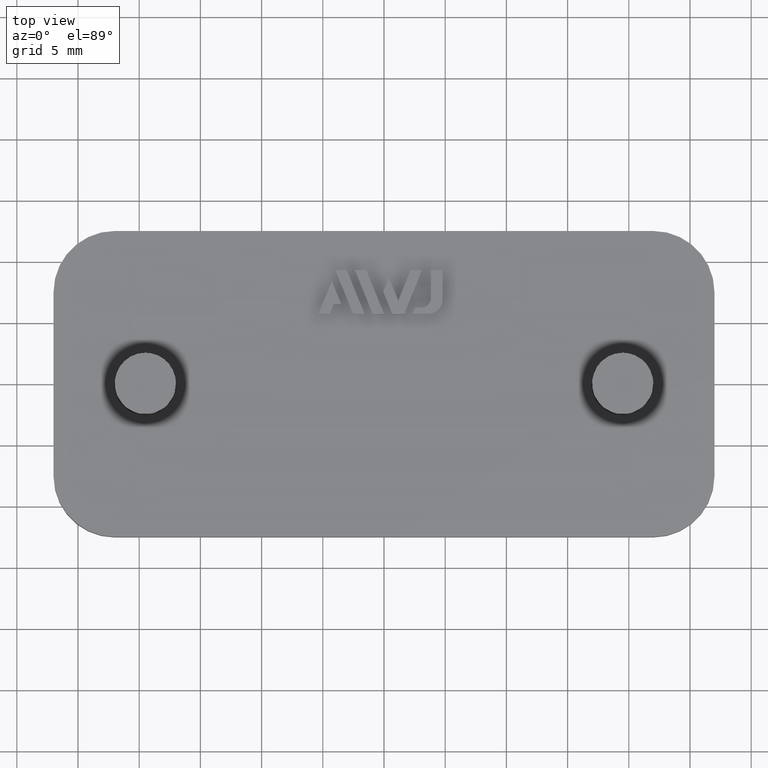
[diagram: clean part render]
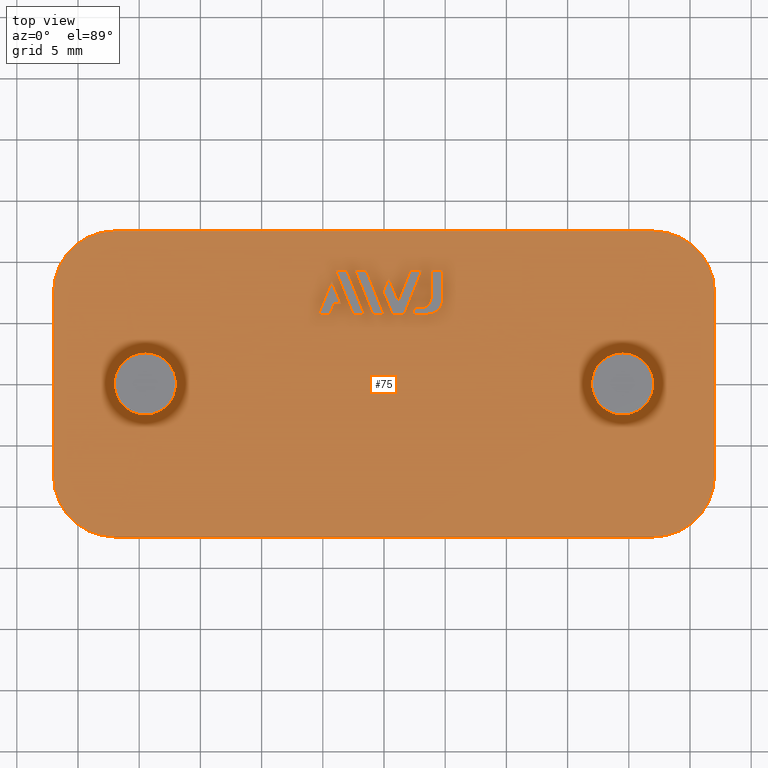
[diagram: same view with one face highlighted and labeled with its STEP entity id]
A machine part, top view. The second image highlights one B-rep face of the part: STEP entity #75.
In plain terms, the highlighted planar face has unit normal (0, -0, -1).
Its self-contained STEP definition (entity closure, byte-faithful):
#75 = ADVANCED_FACE( '', ( #137, #138, #139, #140, #141, #142, #143, #144 ), #145, .F. );
#137 = FACE_BOUND( '', #270, .T. );
#138 = FACE_BOUND( '', #271, .T. );
#139 = FACE_OUTER_BOUND( '', #272, .T. );
#140 = FACE_BOUND( '', #273, .T. );
#141 = FACE_BOUND( '', #274, .T. );
#142 = FACE_BOUND( '', #275, .T. );
#143 = FACE_BOUND( '', #276, .T. );
#144 = FACE_BOUND( '', #277, .T. );
#145 = PLANE( '', #278 );
#270 = EDGE_LOOP( '', ( #403, #404, #405, #406, #407, #408, #409 ) );
#271 = EDGE_LOOP( '', ( #410, #411, #412, #413 ) );
#272 = EDGE_LOOP( '', ( #414, #415, #416, #417, #418, #419, #420, #421 ) );
#273 = EDGE_LOOP( '', ( #422 ) );
#274 = EDGE_LOOP( '', ( #423 ) );
#275 = EDGE_LOOP( '', ( #424, #425, #426, #427, #428 ) );
#276 = EDGE_LOOP( '', ( #429, #430, #431, #432 ) );
#277 = EDGE_LOOP( '', ( #433, #434, #435, #436, #437, #438, #439, #440 ) );
#278 = AXIS2_PLACEMENT_3D( '', #441, #442, #443 );
#403 = ORIENTED_EDGE( '', *, *, #882, .F. );
#404 = ORIENTED_EDGE( '', *, *, #883, .F. );
#405 = ORIENTED_EDGE( '', *, *, #884, .F. );
#406 = ORIENTED_EDGE( '', *, *, #885, .F. );
#407 = ORIENTED_EDGE( '', *, *, #886, .F. );
#408 = ORIENTED_EDGE( '', *, *, #887, .F. );
#409 = ORIENTED_EDGE( '', *, *, #888, .F. );
#410 = ORIENTED_EDGE( '', *, *, #889, .F. );
#411 = ORIENTED_EDGE( '', *, *, #890, .F. );
#412 = ORIENTED_EDGE( '', *, *, #891, .F. );
#413 = ORIENTED_EDGE( '', *, *, #892, .F. );
#414 = ORIENTED_EDGE( '', *, *, #893, .F. );
#415 = ORIENTED_EDGE( '', *, *, #894, .F. );
#416 = ORIENTED_EDGE( '', *, *, #895, .F. );
#417 = ORIENTED_EDGE( '', *, *, #896, .F. );
#418 = ORIENTED_EDGE( '', *, *, #897, .F. );
#419 = ORIENTED_EDGE( '', *, *, #898, .F. );
#420 = ORIENTED_EDGE( '', *, *, #899, .F. );
#421 = ORIENTED_EDGE( '', *, *, #900, .F. );
#422 = ORIENTED_EDGE( '', *, *, #901, .T. );
#423 = ORIENTED_EDGE( '', *, *, #902, .T. );
#424 = ORIENTED_EDGE( '', *, *, #903, .F. );
#425 = ORIENTED_EDGE( '', *, *, #904, .F. );
#426 = ORIENTED_EDGE( '', *, *, #905, .F. );
#427 = ORIENTED_EDGE( '', *, *, #906, .F. );
#428 = ORIENTED_EDGE( '', *, *, #907, .F. );
#429 = ORIENTED_EDGE( '', *, *, #908, .F. );
#430 = ORIENTED_EDGE( '', *, *, #909, .F. );
#431 = ORIENTED_EDGE( '', *, *, #910, .F. );
#432 = ORIENTED_EDGE( '', *, *, #911, .F. );
#433 = ORIENTED_EDGE( '', *, *, #912, .F. );
#434 = ORIENTED_EDGE( '', *, *, #913, .F. );
#435 = ORIENTED_EDGE( '', *, *, #914, .F. );
#436 = ORIENTED_EDGE( '', *, *, #915, .F. );
#437 = ORIENTED_EDGE( '', *, *, #916, .F. );
#438 = ORIENTED_EDGE( '', *, *, #917, .F. );
#439 = ORIENTED_EDGE( '', *, *, #918, .F. );
#440 = ORIENTED_EDGE( '', *, *, #919, .F. );
#441 = CARTESIAN_POINT( '', ( 39.5000000000000, 3.65313790502697E-015, 2.99999999999999 ) );
#442 = DIRECTION( '', ( 0.000000000000000, -6.12303176911189E-017, -1.00000000000000 ) );
#443 = DIRECTION( '', ( 0.000000000000000, 1.00000000000000, -6.12303176911189E-017 ) );
#882 = EDGE_CURVE( '', #1030, #1031, #1032, .T. );
#883 = EDGE_CURVE( '', #1033, #1030, #1034, .T. );
#884 = EDGE_CURVE( '', #1035, #1033, #1036, .T. );
#885 = EDGE_CURVE( '', #1037, #1035, #1038, .T. );
#886 = EDGE_CURVE( '', #1039, #1037, #1040, .T. );
#887 = EDGE_CURVE( '', #1041, #1039, #1042, .T. );
#888 = EDGE_CURVE( '', #1031, #1041, #1043, .T. );
#889 = EDGE_CURVE( '', #1044, #1045, #1046, .T. );
#890 = EDGE_CURVE( '', #1047, #1044, #1048, .T. );
#891 = EDGE_CURVE( '', #1049, #1047, #1050, .T. );
#892 = EDGE_CURVE( '', #1045, #1049, #1051, .T. );
#893 = EDGE_CURVE( '', #1052, #1053, #1054, .T. );
#894 = EDGE_CURVE( '', #1055, #1052, #1056, .T. );
#895 = EDGE_CURVE( '', #1057, #1055, #1058, .T. );
#896 = EDGE_CURVE( '', #1059, #1057, #1060, .T. );
#897 = EDGE_CURVE( '', #1061, #1059, #1062, .T. );
#898 = EDGE_CURVE( '', #1063, #1061, #1064, .T. );
#899 = EDGE_CURVE( '', #1065, #1063, #1066, .T. );
#900 = EDGE_CURVE( '', #1053, #1065, #1067, .T. );
#901 = EDGE_CURVE( '', #1068, #1068, #1069, .T. );
#902 = EDGE_CURVE( '', #1070, #1070, #1071, .T. );
#903 = EDGE_CURVE( '', #1072, #1073, #1074, .T. );
#904 = EDGE_CURVE( '', #1075, #1072, #1076, .T. );
#905 = EDGE_CURVE( '', #1077, #1075, #1078, .T. );
#906 = EDGE_CURVE( '', #1079, #1077, #1080, .T. );
#907 = EDGE_CURVE( '', #1073, #1079, #1081, .T. );
#908 = EDGE_CURVE( '', #1082, #1083, #1084, .T. );
#909 = EDGE_CURVE( '', #1085, #1082, #1086, .T. );
#910 = EDGE_CURVE( '', #1087, #1085, #1088, .T. );
#911 = EDGE_CURVE( '', #1083, #1087, #1089, .T. );
#912 = EDGE_CURVE( '', #1090, #1091, #1092, .T. );
#913 = EDGE_CURVE( '', #1093, #1090, #1094, .T. );
#914 = EDGE_CURVE( '', #1095, #1093, #1096, .T. );
#915 = EDGE_CURVE( '', #1097, #1095, #1098, .T. );
#916 = EDGE_CURVE( '', #1099, #1097, #1100, .T. );
#917 = EDGE_CURVE( '', #1101, #1099, #1102, .T. );
#918 = EDGE_CURVE( '', #1103, #1101, #1104, .T. );
#919 = EDGE_CURVE( '', #1091, #1103, #1105, .T. );
#1030 = VERTEX_POINT( '', #1278 );
#1031 = VERTEX_POINT( '', #1279 );
#1032 = LINE( '', #1280, #1281 );
#1033 = VERTEX_POINT( '', #1282 );
#1034 = LINE( '', #1283, #1284 );
#1035 = VERTEX_POINT( '', #1285 );
#1036 = LINE( '', #1286, #1287 );
#1037 = VERTEX_POINT( '', #1288 );
#1038 = LINE( '', #1289, #1290 );
#1039 = VERTEX_POINT( '', #1291 );
#1040 = LINE( '', #1292, #1293 );
#1041 = VERTEX_POINT( '', #1294 );
#1042 = LINE( '', #1295, #1296 );
#1043 = LINE( '', #1297, #1298 );
#1044 = VERTEX_POINT( '', #1299 );
#1045 = VERTEX_POINT( '', #1300 );
#1046 = LINE( '', #1301, #1302 );
#1047 = VERTEX_POINT( '', #1303 );
#1048 = LINE( '', #1304, #1305 );
#1049 = VERTEX_POINT( '', #1306 );
#1050 = LINE( '', #1307, #1308 );
#1051 = LINE( '', #1309, #1310 );
#1052 = VERTEX_POINT( '', #1311 );
#1053 = VERTEX_POINT( '', #1312 );
#1054 = CIRCLE( '', #1313, 5.00000000000000 );
#1055 = VERTEX_POINT( '', #1314 );
#1056 = LINE( '', #1315, #1316 );
#1057 = VERTEX_POINT( '', #1317 );
#1058 = CIRCLE( '', #1318, 4.99999999999995 );
#1059 = VERTEX_POINT( '', #1319 );
#1060 = LINE( '', #1320, #1321 );
#1061 = VERTEX_POINT( '', #1322 );
#1062 = CIRCLE( '', #1323, 4.99999999999998 );
#1063 = VERTEX_POINT( '', #1324 );
#1064 = LINE( '', #1325, #1326 );
#1065 = VERTEX_POINT( '', #1327 );
#1066 = CIRCLE( '', #1328, 5.00000000000000 );
#1067 = LINE( '', #1329, #1330 );
#1068 = VERTEX_POINT( '', #1331 );
#1069 = CIRCLE( '', #1332, 2.54363766232054 );
#1070 = VERTEX_POINT( '', #1333 );
#1071 = CIRCLE( '', #1334, 2.54363766232055 );
#1072 = VERTEX_POINT( '', #1335 );
#1073 = VERTEX_POINT( '', #1336 );
#1074 = LINE( '', #1337, #1338 );
#1075 = VERTEX_POINT( '', #1339 );
#1076 = LINE( '', #1340, #1341 );
#1077 = VERTEX_POINT( '', #1342 );
#1078 = LINE( '', #1343, #1344 );
#1079 = VERTEX_POINT( '', #1345 );
#1080 = LINE( '', #1346, #1347 );
#1081 = LINE( '', #1348, #1349 );
#1082 = VERTEX_POINT( '', #1350 );
#1083 = VERTEX_POINT( '', #1351 );
#1084 = LINE( '', #1352, #1353 );
#1085 = VERTEX_POINT( '', #1354 );
#1086 = LINE( '', #1355, #1356 );
#1087 = VERTEX_POINT( '', #1357 );
#1088 = LINE( '', #1358, #1359 );
#1089 = LINE( '', #1360, #1361 );
#1090 = VERTEX_POINT( '', #1362 );
#1091 = VERTEX_POINT( '', #1363 );
#1092 = CIRCLE( '', #1364, 1.20000000000000 );
#1093 = VERTEX_POINT( '', #1365 );
#1094 = LINE( '', #1366, #1367 );
#1095 = VERTEX_POINT( '', #1368 );
#1096 = LINE( '', #1369, #1370 );
#1097 = VERTEX_POINT( '', #1371 );
#1098 = LINE( '', #1372, #1373 );
#1099 = VERTEX_POINT( '', #1374 );
#1100 = CIRCLE( '', #1375, 0.799999999999998 );
#1101 = VERTEX_POINT( '', #1376 );
#1102 = LINE( '', #1377, #1378 );
#1103 = VERTEX_POINT( '', #1379 );
#1104 = LINE( '', #1380, #1381 );
#1105 = LINE( '', #1382, #1383 );
#1278 = CARTESIAN_POINT( '', ( 1.65153815900082, 5.70000000000000, 2.99999999999999 ) );
#1279 = CARTESIAN_POINT( '', ( 3.10489558569055, 9.29736617046470, 2.99999999999997 ) );
#1280 = CARTESIAN_POINT( '', ( 1.65153815900082, 5.70000000000000, 2.99999999999999 ) );
#1281 = VECTOR( '', #1658, 1000.00000000000 );
#1282 = CARTESIAN_POINT( '', ( 0.668868987414780, 5.70000000000000, 2.99999999999997 ) );
#1283 = CARTESIAN_POINT( '', ( 0.668868987414779, 5.70000000000000, 2.99999999999999 ) );
#1284 = VECTOR( '', #1659, 1000.00000000000 );
#1285 = CARTESIAN_POINT( '', ( -0.0717422425349961, 7.53275704409051, 3.00000000000000 ) );
#1286 = CARTESIAN_POINT( '', ( -0.0717422425349969, 7.53275704409051, 2.99999999999999 ) );
#1287 = VECTOR( '', #1660, 1000.00000000000 );
#1288 = CARTESIAN_POINT( '', ( 0.393055647481204, 8.68337374758956, 3.00000000000000 ) );
#1289 = CARTESIAN_POINT( '', ( 0.393055647481204, 8.68337374758955, 3.00000000000000 ) );
#1290 = VECTOR( '', #1661, 1000.00000000000 );
#1291 = CARTESIAN_POINT( '', ( 1.16010139340526, 6.78495716450334, 2.99999999999997 ) );
#1292 = CARTESIAN_POINT( '', ( 1.16010139340526, 6.78495716450335, 2.99999999999999 ) );
#1293 = VECTOR( '', #1662, 1000.00000000000 );
#1294 = CARTESIAN_POINT( '', ( 2.17529980565815, 9.29736617046470, 2.99999999999997 ) );
#1295 = CARTESIAN_POINT( '', ( 2.17529980565815, 9.29736617046470, 2.99999999999997 ) );
#1296 = VECTOR( '', #1663, 1000.00000000000 );
#1297 = CARTESIAN_POINT( '', ( 3.10489558569055, 9.29736617046470, 2.99999999999997 ) );
#1298 = VECTOR( '', #1664, 1000.00000000000 );
#1299 = CARTESIAN_POINT( '', ( -1.59847678860036, 5.70000000000000, 3.00000000000000 ) );
#1300 = CARTESIAN_POINT( '', ( -3.05206261720165, 9.29736617046469, 3.00000000000002 ) );
#1301 = CARTESIAN_POINT( '', ( -1.59847678860036, 5.70000000000000, 2.99999999999999 ) );
#1302 = VECTOR( '', #1665, 1000.00000000000 );
#1303 = CARTESIAN_POINT( '', ( -2.52799443113670, 5.69999999999999, 3.00000000000000 ) );
#1304 = CARTESIAN_POINT( '', ( -2.52799443113670, 5.70000000000000, 3.00000000000000 ) );
#1305 = VECTOR( '', #1666, 1000.00000000000 );
#1306 = CARTESIAN_POINT( '', ( -3.98137590013291, 9.29736617046469, 3.00000000000002 ) );
#1307 = CARTESIAN_POINT( '', ( -3.98137590013291, 9.29736617046469, 3.00000000000002 ) );
#1308 = VECTOR( '', #1667, 1000.00000000000 );
#1309 = CARTESIAN_POINT( '', ( -3.05206261720165, 9.29736617046469, 3.00000000000002 ) );
#1310 = VECTOR( '', #1668, 1000.00000000000 );
#1311 = CARTESIAN_POINT( '', ( 22.0000000000000, 12.5000000000000, 2.99999999999999 ) );
#1312 = CARTESIAN_POINT( '', ( 27.0000000000000, 7.50000000000001, 2.99999999999999 ) );
#1313 = AXIS2_PLACEMENT_3D( '', #1669, #1670, #1671 );
#1314 = CARTESIAN_POINT( '', ( -22.0000000000000, 12.4999999999999, 2.99999999999999 ) );
#1315 = CARTESIAN_POINT( '', ( -39.4999999999999, 12.5000000000000, 2.99999999999999 ) );
#1316 = VECTOR( '', #1672, 1000.00000000000 );
#1317 = CARTESIAN_POINT( '', ( -27.0000000000000, 7.50000000000002, 2.99999999999999 ) );
#1318 = AXIS2_PLACEMENT_3D( '', #1673, #1674, #1675 );
#1319 = CARTESIAN_POINT( '', ( -27.0000000000000, -7.50000000000002, 2.99999999999999 ) );
#1320 = CARTESIAN_POINT( '', ( -27.0000000000000, 3.65313790502697E-015, 2.99999999999999 ) );
#1321 = VECTOR( '', #1676, 1000.00000000000 );
#1322 = CARTESIAN_POINT( '', ( -22.0000000000000, -12.5000000000000, 2.99999999999999 ) );
#1323 = AXIS2_PLACEMENT_3D( '', #1677, #1678, #1679 );
#1324 = CARTESIAN_POINT( '', ( 22.0000000000000, -12.5000000000000, 2.99999999999999 ) );
#1325 = CARTESIAN_POINT( '', ( 39.5000000000000, -12.5000000000000, 2.99999999999999 ) );
#1326 = VECTOR( '', #1680, 1000.00000000000 );
#1327 = CARTESIAN_POINT( '', ( 27.0000000000000, -7.49999999999999, 2.99999999999999 ) );
#1328 = AXIS2_PLACEMENT_3D( '', #1681, #1682, #1683 );
#1329 = CARTESIAN_POINT( '', ( 27.0000000000000, 3.65313790502697E-015, 2.99999999999999 ) );
#1330 = VECTOR( '', #1684, 1000.00000000000 );
#1331 = CARTESIAN_POINT( '', ( -19.5000000000000, 2.54363766232054, 2.99999999999999 ) );
#1332 = AXIS2_PLACEMENT_3D( '', #1685, #1686, #1687 );
#1333 = CARTESIAN_POINT( '', ( 19.5000000000000, 2.54363766232055, 2.99999999999999 ) );
#1334 = AXIS2_PLACEMENT_3D( '', #1688, #1689, #1690 );
#1335 = CARTESIAN_POINT( '', ( -4.42597825270628, 5.69999999999999, 3.00000000000000 ) );
#1336 = CARTESIAN_POINT( '', ( -4.09004712542055, 6.53085402732082, 3.00000000000000 ) );
#1337 = CARTESIAN_POINT( '', ( -4.42597825270628, 5.69999999999999, 3.00000000000000 ) );
#1338 = VECTOR( '', #1691, 1000.00000000000 );
#1339 = CARTESIAN_POINT( '', ( -5.35529153563754, 5.69999999999999, 3.00000000000002 ) );
#1340 = CARTESIAN_POINT( '', ( -5.35529153563754, 5.69999999999999, 3.00000000000000 ) );
#1341 = VECTOR( '', #1692, 1000.00000000000 );
#1342 = CARTESIAN_POINT( '', ( -4.26568819540701, 8.39721019471653, 3.00000000000002 ) );
#1343 = CARTESIAN_POINT( '', ( -4.26568819540701, 8.39721019471652, 3.00000000000002 ) );
#1344 = VECTOR( '', #1693, 1000.00000000000 );
#1345 = CARTESIAN_POINT( '', ( -3.51197991900250, 6.53085402732082, 3.00000000000000 ) );
#1346 = CARTESIAN_POINT( '', ( -3.51197991900250, 6.53085402732082, 3.00000000000000 ) );
#1347 = VECTOR( '', #1694, 1000.00000000000 );
#1348 = CARTESIAN_POINT( '', ( -4.09004712542055, 6.53085402732082, 3.00000000000000 ) );
#1349 = VECTOR( '', #1695, 1000.00000000000 );
#1350 = CARTESIAN_POINT( '', ( 2.42861286636753E-014, 5.70000000000000, 2.99999999999999 ) );
#1351 = CARTESIAN_POINT( '', ( -1.45358582860126, 9.29736617046470, 3.00000000000000 ) );
#1352 = CARTESIAN_POINT( '', ( 2.42861286636753E-014, 5.70000000000000, 2.99999999999999 ) );
#1353 = VECTOR( '', #1696, 1000.00000000000 );
#1354 = CARTESIAN_POINT( '', ( -0.929583758879132, 5.70000000000000, 3.00000000000000 ) );
#1355 = CARTESIAN_POINT( '', ( -0.929583758879133, 5.70000000000000, 2.99999999999999 ) );
#1356 = VECTOR( '', #1697, 1000.00000000000 );
#1357 = CARTESIAN_POINT( '', ( -2.38316958748042, 9.29736617046470, 3.00000000000000 ) );
#1358 = CARTESIAN_POINT( '', ( -2.38316958748042, 9.29736617046470, 3.00000000000002 ) );
#1359 = VECTOR( '', #1698, 1000.00000000000 );
#1360 = CARTESIAN_POINT( '', ( -1.45358582860126, 9.29736617046470, 3.00000000000000 ) );
#1361 = VECTOR( '', #1699, 1000.00000000000 );
#1362 = CARTESIAN_POINT( '', ( 3.58288028181887, 5.70000000000000, 2.99999999999997 ) );
#1363 = CARTESIAN_POINT( '', ( 4.78288028181886, 6.90000000000000, 2.99999999999996 ) );
#1364 = AXIS2_PLACEMENT_3D( '', #1700, #1701, #1702 );
#1365 = CARTESIAN_POINT( '', ( 2.32040714641557, 5.70000000000000, 2.99999999999997 ) );
#1366 = CARTESIAN_POINT( '', ( 2.32040714641557, 5.70000000000000, 2.99999999999997 ) );
#1367 = VECTOR( '', #1703, 1000.00000000000 );
#1368 = CARTESIAN_POINT( '', ( 2.53176335265063, 6.22312496744035, 2.99999999999997 ) );
#1369 = CARTESIAN_POINT( '', ( 2.53176335265063, 6.22312496744036, 2.99999999999997 ) );
#1370 = VECTOR( '', #1704, 1000.00000000000 );
#1371 = CARTESIAN_POINT( '', ( 3.04274195062400, 6.22312496744035, 2.99999999999997 ) );
#1372 = CARTESIAN_POINT( '', ( 3.04274195062399, 6.22312496744035, 2.99999999999997 ) );
#1373 = VECTOR( '', #1705, 1000.00000000000 );
#1374 = CARTESIAN_POINT( '', ( 3.84274195062400, 7.02312496744034, 2.99999999999997 ) );
#1375 = AXIS2_PLACEMENT_3D( '', #1706, #1707, #1708 );
#1376 = CARTESIAN_POINT( '', ( 3.84274195062400, 9.29736617046470, 2.99999999999997 ) );
#1377 = CARTESIAN_POINT( '', ( 3.84274195062400, 9.29736617046470, 2.99999999999997 ) );
#1378 = VECTOR( '', #1709, 1000.00000000000 );
#1379 = CARTESIAN_POINT( '', ( 4.78288028181886, 9.29736617046470, 2.99999999999996 ) );
#1380 = CARTESIAN_POINT( '', ( 4.78288028181886, 9.29736617046470, 2.99999999999997 ) );
#1381 = VECTOR( '', #1710, 1000.00000000000 );
#1382 = CARTESIAN_POINT( '', ( 4.78288028181886, 6.90000000000000, 2.99999999999996 ) );
#1383 = VECTOR( '', #1711, 1000.00000000000 );
#1658 = DIRECTION( '', ( 0.374590451773198, 0.927190376050330, 8.29390871736282E-016 ) );
#1659 = DIRECTION( '', ( 1.00000000000000, -2.27738354346373E-031, -3.71937241115124E-015 ) );
#1660 = DIRECTION( '', ( 0.374662832411421, -0.927161130553612, -3.61607275949142E-015 ) );
#1661 = DIRECTION( '', ( -0.374550179126525, -0.927206645422846, -8.29579661146845E-016 ) );
#1662 = DIRECTION( '', ( -0.374621565025663, 0.927177805503196, 3.61595924339183E-015 ) );
#1663 = DIRECTION( '', ( -0.374644435760503, -0.927168564368796, -8.29137798890870E-016 ) );
#1664 = DIRECTION( '', ( -1.00000000000000, 2.79533177046626E-031, 3.71937241115124E-015 ) );
#1665 = DIRECTION( '', ( -0.374641058409019, 0.927169929060563, 3.61601286537797E-015 ) );
#1666 = DIRECTION( '', ( 1.00000000000000, -2.79537531044408E-031, -3.71937241115124E-015 ) );
#1667 = DIRECTION( '', ( 0.374595778945159, -0.927188223823227, -3.61588830983189E-015 ) );
#1668 = DIRECTION( '', ( -1.00000000000000, 2.27738354346373E-031, 3.71937241115124E-015 ) );
#1669 = CARTESIAN_POINT( '', ( 22.0000000000000, 7.50000000000000, 2.99999999999999 ) );
#1670 = DIRECTION( '', ( 0.000000000000000, -6.12303176911189E-017, -1.00000000000000 ) );
#1671 = DIRECTION( '', ( 0.000000000000000, 1.00000000000000, -6.12303176911189E-017 ) );
#1672 = DIRECTION( '', ( 1.00000000000000, -3.94430452610506E-031, 2.41511019203931E-047 ) );
#1673 = CARTESIAN_POINT( '', ( -22.0000000000000, 7.49999999999997, 2.99999999999999 ) );
#1674 = DIRECTION( '', ( 0.000000000000000, -6.12303176911189E-017, -1.00000000000000 ) );
#1675 = DIRECTION( '', ( 0.000000000000000, 1.00000000000000, -6.12303176911189E-017 ) );
#1676 = DIRECTION( '', ( -2.95286543775260E-032, 1.00000000000000, -6.12303176911189E-017 ) );
#1677 = CARTESIAN_POINT( '', ( -22.0000000000000, -7.50000000000002, 2.99999999999999 ) );
#1678 = DIRECTION( '', ( 0.000000000000000, -6.12303176911189E-017, -1.00000000000000 ) );
#1679 = DIRECTION( '', ( 0.000000000000000, 1.00000000000000, -6.12303176911189E-017 ) );
#1680 = DIRECTION( '', ( -1.00000000000000, 3.94430452610506E-031, -2.41511019203931E-047 ) );
#1681 = CARTESIAN_POINT( '', ( 22.0000000000000, -7.50000000000001, 2.99999999999999 ) );
#1682 = DIRECTION( '', ( 0.000000000000000, -6.12303176911189E-017, -1.00000000000000 ) );
#1683 = DIRECTION( '', ( 0.000000000000000, 1.00000000000000, -6.12303176911189E-017 ) );
#1684 = DIRECTION( '', ( -9.86076131526265E-032, -1.00000000000000, 6.12303176911189E-017 ) );
#1685 = CARTESIAN_POINT( '', ( -19.5000000000000, -1.76787295740055E-015, 2.99999999999999 ) );
#1686 = DIRECTION( '', ( 0.000000000000000, -6.12303176911189E-017, -1.00000000000000 ) );
#1687 = DIRECTION( '', ( 0.000000000000000, 1.00000000000000, -6.12303176911189E-017 ) );
#1688 = CARTESIAN_POINT( '', ( 19.5000000000000, 3.43629747052987E-015, 2.99999999999999 ) );
#1689 = DIRECTION( '', ( 0.000000000000000, -6.12303176911189E-017, -1.00000000000000 ) );
#1690 = DIRECTION( '', ( 0.000000000000000, 1.00000000000000, -6.12303176911189E-017 ) );
#1691 = DIRECTION( '', ( 0.374840934415179, 0.927089140205383, 8.28216554053157E-016 ) );
#1692 = DIRECTION( '', ( 1.00000000000000, 5.55111512312576E-017, -3.71937241115124E-015 ) );
#1693 = DIRECTION( '', ( -0.374565126786346, -0.927200607094025, -8.29509590337091E-016 ) );
#1694 = DIRECTION( '', ( -0.374457717202846, 0.927243990558706, 3.61550848910027E-015 ) );
#1695 = DIRECTION( '', ( 1.00000000000000, -2.69384246100057E-031, -3.71937241115124E-015 ) );
#1696 = DIRECTION( '', ( -0.374641058409019, 0.927169929060563, 3.61601286537797E-015 ) );
#1697 = DIRECTION( '', ( 1.00000000000000, -2.22044604925032E-016, -3.71937241115124E-015 ) );
#1698 = DIRECTION( '', ( 0.374641058409020, -0.927169929060563, -3.61601286537797E-015 ) );
#1699 = DIRECTION( '', ( -1.00000000000000, 2.22044604925032E-016, 3.71937241115124E-015 ) );
#1700 = CARTESIAN_POINT( '', ( 3.58288028181887, 6.90000000000000, 2.99999999999996 ) );
#1701 = DIRECTION( '', ( -7.60253073092890E-048, 6.12303176911189E-017, 1.00000000000000 ) );
#1702 = DIRECTION( '', ( -7.22801448323669E-016, -1.00000000000000, 6.12303176911189E-017 ) );
#1703 = DIRECTION( '', ( 1.00000000000000, -2.27738354346373E-031, -3.71937241115124E-015 ) );
#1704 = DIRECTION( '', ( -0.374606593415912, -0.927183854566787, -8.29315201855852E-016 ) );
#1705 = DIRECTION( '', ( -1.00000000000000, 2.74852116841169E-031, 3.71937241115124E-015 ) );
#1706 = CARTESIAN_POINT( '', ( 3.04274195062400, 7.02312496744034, 2.99999999999997 ) );
#1707 = DIRECTION( '', ( -1.73472347597681E-014, -6.12303176911189E-017, -1.00000000000000 ) );
#1708 = DIRECTION( '', ( 1.00000000000000, -1.06217669540302E-030, -1.73472347597681E-014 ) );
#1709 = DIRECTION( '', ( -6.07153216591974E-017, -1.00000000000000, -2.39716925558505E-015 ) );
#1710 = DIRECTION( '', ( -1.00000000000000, 2.78952358724311E-031, 3.71937241115124E-015 ) );
#1711 = DIRECTION( '', ( 6.07153216591974E-017, 1.00000000000000, 2.39716925558505E-015 ) );